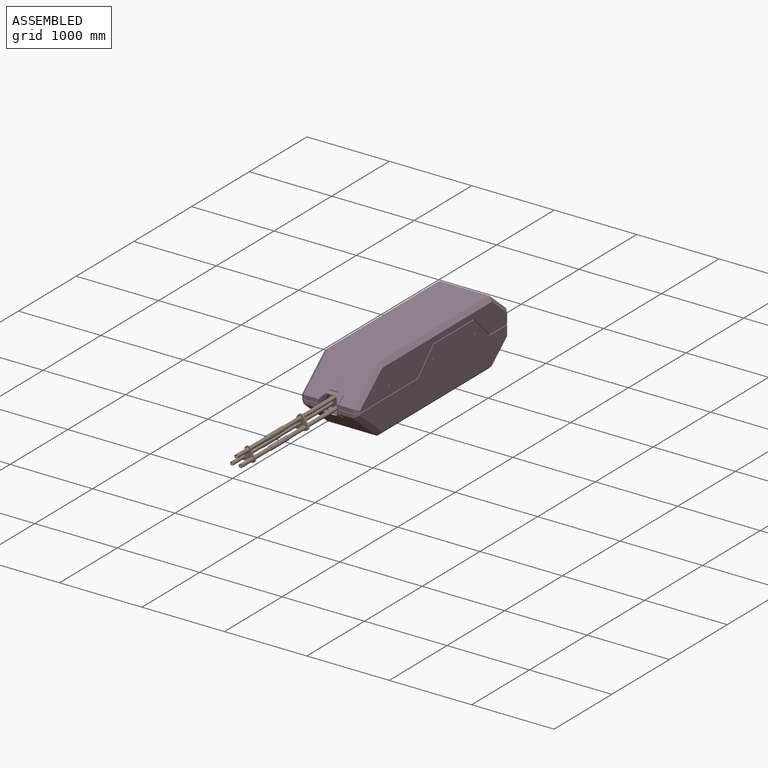
[diagram: assembled view]
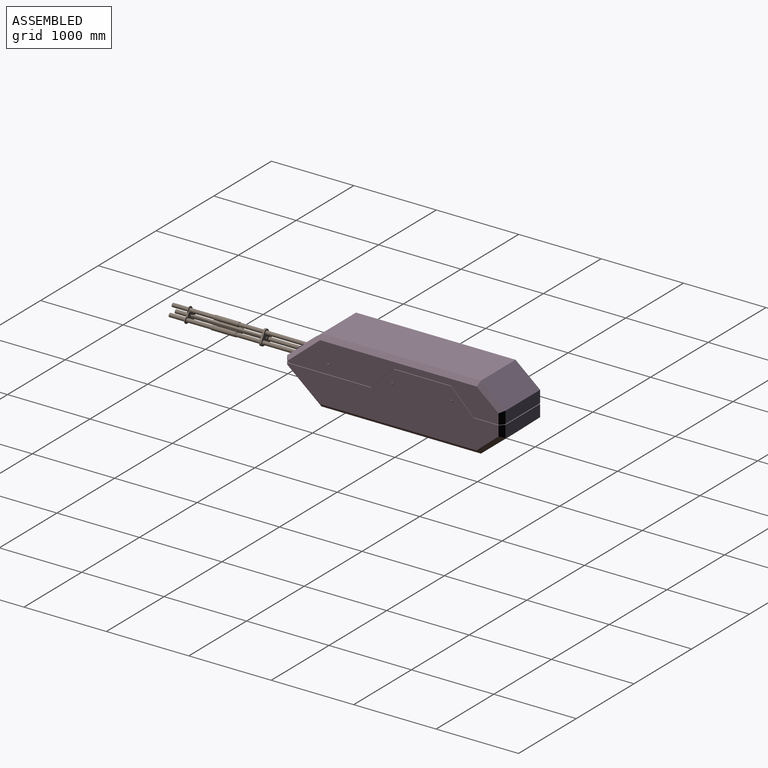
[diagram: assembled view, second angle]
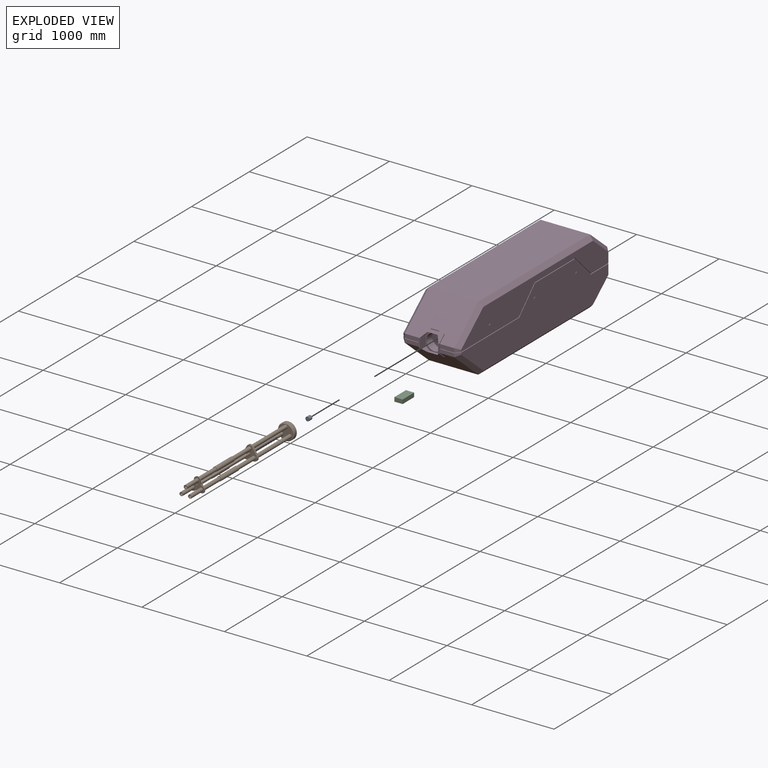
[diagram: exploded view]
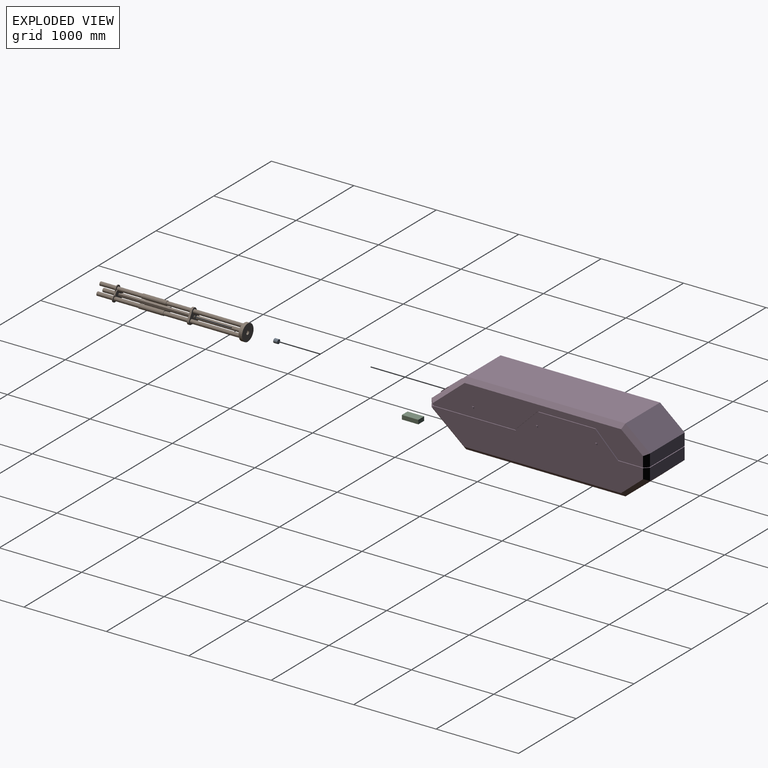
[diagram: exploded view, second angle]
ASSEMBLY  parts=4 mates=3
PART A: 3 faces, bbox 50x50x50 mm
  f0: cylinder r=25mm len=50mm, axis (0,1,0), area 7854mm2, adj f1,f2
  f1: plane 50x50mm, normal (0,-1,0), area 1963.5mm2, adj f0
  f2: plane 50x50mm, normal (0,1,0), area 1963.5mm2, adj f0
PART B: 78 faces, bbox 200x1785x200 mm
  f0: cylinder r=22.5mm len=300mm, axis (0,1,0), area 41789.5mm2, adj f25,f26,f43,f53,f55
  f1: plane 36.91x10mm, normal (1,0,0), area 369.1mm2, adj f2,f20,f22,f23,f58
  f2: plane 32.44x18.73mm, normal (0,-1,0), area 277.8mm2, adj f1,f25,f58
  f3: cylinder r=22.5mm len=300mm, axis (0,1,0), area 41789.5mm2, adj f24,f26,f37,f39,f43
  f4: cylinder r=22.5mm len=300mm, axis (0,1,0), area 41789.5mm2, adj f18,f23,f24,f25,f26
  f5: cylinder r=25mm len=50mm, axis (0,1,0), area 3927mm2, adj f7,f8
  f6: cylinder r=100mm len=200mm, axis (0,1,0), area 25132.7mm2, adj f7,f63
  f7: plane 200x200mm, normal (0,1,0), area 29452.4mm2, adj f5,f6
  f8: plane 50x50mm, normal (0,1,0), area 1963.5mm2, adj f5
  f9: plane 180x180mm, normal (0,-1,0), area 20675.6mm2, adj f10,f32,f49,f63
  f10: cylinder r=22.5mm len=600mm, axis (0,1,0), area 84823mm2, adj f9,f15
  f11: cylinder r=40mm len=69.28mm, axis (0,1,0), area 2094.4mm2, adj f12,f13,f14,f15
  f12: plane 90x51.96mm, normal (-0.87,0,0.5), area 2598.1mm2, adj f11,f14,f15,f33
  f13: plane 90x51.96mm, normal (0.87,0,0.5), area 2598.1mm2, adj f11,f14,f15,f50
  f14: plane 183.92x170mm, normal (0,-1,0), area 17002.6mm2, adj f11,f12,f13,f16,f33,f34,f35,f50
  f15: plane 183.92x170mm, normal (0,1,0), area 17002.6mm2, adj f10,f11,f12,f13,f32,f33,f34,f49
  f16: cylinder r=22.5mm len=300mm, axis (0,1,0), area 42411.5mm2, adj f14,f19
  f17: cylinder r=27.5mm len=300mm, axis (0,1,0), area 51836.3mm2, adj f18,f19
  f18: plane 55x55mm, normal (0,-1,0), area 785.4mm2, adj f4,f17
  f19: plane 55x55mm, normal (0,1,0), area 785.4mm2, adj f16,f17
  f20: cylinder r=40mm len=80mm, axis (0,1,0), area 1256.6mm2, adj f1,f21,f22,f23
  f21: plane 36.91x10mm, normal (-1,0,0), area 369.1mm2, adj f20,f22,f23,f27,f40
  f22: plane 183.92x170mm, normal (0,-1,0), area 13997.2mm2, adj f1,f20,f21,f28,f40,f41,f42,f45
  f23: plane 80x55.28mm, normal (0,1,0), area 2038.7mm2, adj f1,f4,f20,f21,f24,f25
  f24: cylinder r=60mm len=64.53mm, axis (0,-1,0), area 804mm2, adj f3,f4,f23,f26,f27,f39
  f25: cylinder r=60mm len=64.53mm, axis (0,-1,0), area 804mm2, adj f0,f2,f4,f23,f26,f55
  f26: plane 120x115.78mm, normal (0,1,0), area 8714.6mm2, adj f0,f3,f4,f24,f25,f43,f64,f65
  f27: plane 32.44x18.73mm, normal (0,-1,0), area 277.8mm2, adj f21,f24,f40
  f28: cylinder r=22.5mm len=200mm, axis (0,1,0), area 28274.3mm2, adj f22,f29
  f29: plane 45x45mm, normal (0,-1,0), area 883.6mm2, adj f28,f30
  f30: cylinder r=15mm len=200mm, axis (0,-1,0), area 18849.6mm2, adj f29,f31
  f31: plane 30x30mm, normal (0,-1,0), area 706.9mm2, adj f30
  f32: cylinder r=22.5mm len=600mm, axis (0,1,0), area 84823mm2, adj f9,f15
  f33: cylinder r=40mm len=60mm, axis (0,1,0), area 2094.4mm2, adj f12,f14,f15,f34
  f34: plane 103.92x25mm, normal (0,0,-1), area 2598.1mm2, adj f14,f15,f33,f50
  f35: cylinder r=22.5mm len=300mm, axis (0,1,0), area 42411.5mm2, adj f14,f38
  f36: cylinder r=27.5mm len=300mm, axis (0,1,0), area 51836.3mm2, adj f37,f38
  f37: plane 55x55mm, normal (0,-1,0), area 785.4mm2, adj f3,f36
  f38: plane 55x55mm, normal (0,1,0), area 785.4mm2, adj f35,f36
  f39: plane 82.28x73.23mm, normal (0,1,0), area 2038.7mm2, adj f3,f24,f40,f41,f42,f43
  f40: plane 31.96x18.45mm, normal (-0.5,0,0.87), area 369.1mm2, adj f21,f22,f27,f39,f41
  f41: cylinder r=40mm len=74.64mm, axis (0,1,0), area 1256.6mm2, adj f22,f39,f40,f42
  f42: plane 31.96x18.45mm, normal (0.5,0,-0.87), area 369.1mm2, adj f22,f39,f41,f44,f56
  f43: cylinder r=60mm len=74.52mm, axis (0,-1,0), area 804mm2, adj f0,f3,f26,f39,f44,f55
  f44: plane 37.46x13.81mm, normal (0,-1,0), area 277.8mm2, adj f42,f43,f56
  f45: cylinder r=22.5mm len=200mm, axis (0,1,0), area 28274.3mm2, adj f22,f46
  f46: plane 45x45mm, normal (0,-1,0), area 883.6mm2, adj f45,f47
  f47: cylinder r=15mm len=200mm, axis (0,-1,0), area 18849.6mm2, adj f46,f48
  f48: plane 30x30mm, normal (0,-1,0), area 706.9mm2, adj f47
  f49: cylinder r=22.5mm len=600mm, axis (0,1,0), area 84823mm2, adj f9,f15
  f50: cylinder r=40mm len=60mm, axis (0,1,0), area 2094.4mm2, adj f13,f14,f15,f34
  f51: cylinder r=22.5mm len=300mm, axis (0,1,0), area 42411.5mm2, adj f14,f54
  f52: cylinder r=27.5mm len=300mm, axis (0,1,0), area 51836.3mm2, adj f53,f54
  f53: plane 55x55mm, normal (0,-1,0), area 785.4mm2, adj f0,f52
  f54: plane 55x55mm, normal (0,1,0), area 785.4mm2, adj f51,f52
  f55: plane 82.28x73.23mm, normal (0,1,0), area 2038.7mm2, adj f0,f25,f43,f56,f57,f58
  f56: plane 31.96x18.45mm, normal (-0.5,0,-0.87), area 369.1mm2, adj f22,f42,f44,f55,f57
  f57: cylinder r=40mm len=74.64mm, axis (0,1,0), area 1256.6mm2, adj f22,f55,f56,f58
  f58: plane 31.96x18.45mm, normal (0.5,0,0.87), area 369.1mm2, adj f1,f2,f22,f55,f57
  f59: cylinder r=22.5mm len=200mm, axis (0,1,0), area 28274.3mm2, adj f22,f60
  f60: plane 45x45mm, normal (0,-1,0), area 883.6mm2, adj f59,f61
  f61: cylinder r=15mm len=200mm, axis (0,-1,0), area 18849.6mm2, adj f60,f62
  f62: plane 30x30mm, normal (0,-1,0), area 706.9mm2, adj f61
  f63: cone r=90mm half-angle=45deg, axis (0,1,0), area 8441.5mm2, adj f6,f9
  f64: plane 890x20mm, normal (1,0,0), area 17800mm2, adj f14,f26,f65,f67
  f65: plane 890x20mm, normal (0,0,-1), area 17800mm2, adj f14,f26,f64,f66
  f66: plane 890x20mm, normal (-1,0,0), area 17800mm2, adj f14,f26,f65,f67
  f67: plane 890x20mm, normal (0,0,1), area 17800mm2, adj f14,f26,f64,f66
  f68: plane 20x20mm, normal (0,-1,0), area 400mm2, adj f69,f70,f71,f72
  f69: plane 20x10mm, normal (1,0,0), area 200mm2, adj f22,f68,f70,f72
  f70: plane 20x10mm, normal (0,0,-1), area 200mm2, adj f22,f68,f69,f71
  f71: plane 20x10mm, normal (-1,0,0), area 200mm2, adj f22,f68,f70,f72
  f72: plane 20x10mm, normal (0,0,1), area 200mm2, adj f22,f68,f69,f71
  f73: plane 20x10mm, normal (0,0,1), area 200mm2, adj f15,f74,f76,f77
  f74: plane 20x10mm, normal (-1,0,0), area 200mm2, adj f15,f73,f75,f77
  f75: plane 20x10mm, normal (0,0,-1), area 200mm2, adj f15,f74,f76,f77
  f76: plane 20x10mm, normal (1,0,0), area 200mm2, adj f15,f73,f75,f77
  f77: plane 20x20mm, normal (0,1,0), area 400mm2, adj f73,f74,f75,f76
PART C: 6 faces, bbox 100x200x50 mm
  f0: plane 100x50mm, normal (0,-1,0), area 5000mm2, adj f1,f3,f4,f5
  f1: plane 200x50mm, normal (-1,0,0), area 10000mm2, adj f0,f2,f4,f5
  f2: plane 100x50mm, normal (0,1,0), area 5000mm2, adj f1,f3,f4,f5
  f3: plane 200x50mm, normal (1,0,0), area 10000mm2, adj f0,f2,f4,f5
  f4: plane 200x100mm, normal (0,0,-1), area 20000mm2, adj f0,f1,f2,f3
  f5: plane 200x100mm, normal (0,0,1), area 20000mm2, adj f0,f1,f2,f3
PART D: 125 faces, bbox 720x2660x800 mm
  f0: plane 1934.95x600mm, normal (0,0,-1), area 1140968.7mm2, adj f28,f31,f34,f82,f120,f121,f122,f123
  f1: plane 109.33x15mm, normal (0,-1,0), area 1639.9mm2, adj f4,f24,f39,f110
  f2: plane 2550x345mm, normal (1,0,0), area 519220.1mm2, adj f8,f12,f13,f14,f15,f16,f19,f42
  f3: plane 2550x620mm, normal (1,0,0), area 1052791.9mm2, adj f29,f32,f33,f34,f35,f36,f37,f43
  f4: plane 250x99.38mm, normal (1,0,0), area 3407.7mm2, adj f1,f5,f6,f7,f8,f23,f24,f27
  f5: plane 175x45mm, normal (0,-1,0), area 7875mm2, adj f4,f6,f8,f12
  f6: plane 600x417.11mm, normal (0,-0.64,0.77), area 295976.5mm2, adj f4,f5,f10,f13,f23,f25,f26,f65
  f7: plane 170.86x10mm, normal (0,-1,0), area 1708.6mm2, adj f4,f8,f20,f29
  f8: plane 1050x225mm, normal (0,0,-1), area 12374.3mm2, adj f2,f4,f5,f7,f12,f20,f21,f42
  f9: plane 600x145mm, normal (0,1,0), area 87000mm2, adj f11,f16,f19,f73
  f10: plane 1934.95x600mm, normal (0,0,1), area 1160968.7mm2, adj f6,f11,f14,f71
  f11: plane 600x297.94mm, normal (0,0.64,0.77), area 233358.6mm2, adj f9,f10,f15,f72
  f12: plane 50x50mm, normal (0.71,-0.71,0), area 2357.7mm2, adj f2,f5,f8,f13
  f13: plane 435.31x373.32mm, normal (0.71,-0.45,0.54), area 37034.5mm2, adj f2,f6,f12,f14
  f14: plane 1934.95x50mm, normal (0.71,0,0.71), area 135534.6mm2, adj f2,f10,f13,f15
  f15: plane 316.14x273.32mm, normal (0.71,0.45,0.54), area 26033.8mm2, adj f2,f11,f14,f16
  f16: plane 145x50mm, normal (0.71,0.71,0), area 9428.7mm2, adj f2,f9,f15,f19
  f17: plane 44.14x44.14mm, normal (0.71,0.71,0), area 624.3mm2, adj f18,f19,f21,f37
  f18: plane 591.72x10mm, normal (0,1,0), area 5917.2mm2, adj f17,f19,f37,f74
  f19: plane 700x350mm, normal (0,0,-1), area 13248.5mm2, adj f2,f9,f16,f17,f18,f21,f46,f63
  f20: plane 44.14x44.14mm, normal (0.71,-0.71,0), area 624.3mm2, adj f7,f8,f21,f29
  f21: plane 2541.72x285mm, normal (1,0,0), area 27695.3mm2, adj f8,f17,f19,f20,f29,f37,f42,f43
  f22: plane 109.33x15mm, normal (0,-1,0), area 1639.9mm2, adj f24,f39,f65,f108
  f23: plane 250x27.47mm, normal (0,0,1), area 5081.1mm2, adj f4,f6,f24,f25,f26,f65,f77
  f24: plane 250x83.82mm, normal (0,-0.64,0.77), area 12305.9mm2, adj f1,f4,f22,f23,f65,f107,f108,f110
  f25: plane 100x10mm, normal (0,-1,0), area 1000mm2, adj f6,f23,f26,f77
  f26: plane 11.92x10mm, normal (-1,0,0), area 59.6mm2, adj f6,f23,f25
  f27: plane 175x45mm, normal (0,-1,0), area 7875mm2, adj f4,f28,f29,f32
  f28: plane 600x417.11mm, normal (0,-0.64,-0.77), area 295976.5mm2, adj f0,f4,f27,f33,f38,f40,f41,f65
  f29: plane 1054.14x225mm, normal (0,0,1), area 12415.7mm2, adj f3,f4,f7,f20,f21,f27,f32,f43
  f30: plane 600x145mm, normal (0,1,0), area 87000mm2, adj f31,f36,f37,f84
  f31: plane 600x297.94mm, normal (0,0.64,-0.77), area 233358.6mm2, adj f0,f30,f35,f83
  f32: plane 50x50mm, normal (0.71,-0.71,0), area 2357.7mm2, adj f3,f27,f29,f33
  f33: plane 435.31x373.32mm, normal (0.71,-0.45,-0.54), area 37034.5mm2, adj f3,f28,f32,f34
  f34: plane 1934.95x50mm, normal (0.71,0,-0.71), area 135534.6mm2, adj f0,f3,f33,f35
  f35: plane 316.14x273.32mm, normal (0.71,0.45,-0.54), area 26033.8mm2, adj f3,f31,f34,f36
  f36: plane 145x50mm, normal (0.71,0.71,0), area 9428.7mm2, adj f3,f30,f35,f37
  f37: plane 700x354.14mm, normal (0,0,1), area 13331.4mm2, adj f3,f17,f18,f21,f30,f36,f45,f64
  f38: plane 250x27.47mm, normal (0,0,-1), area 5081.1mm2, adj f4,f28,f39,f40,f41,f65,f85
  f39: plane 250x83.82mm, normal (0,-0.64,-0.77), area 12305.9mm2, adj f1,f4,f22,f38,f65,f108,f109,f110
  f40: plane 100x10mm, normal (0,-1,0), area 1000mm2, adj f28,f38,f41,f85
  f41: plane 11.92x10mm, normal (-1,0,0), area 59.6mm2, adj f28,f38,f40
  f42: plane 275x275mm, normal (0,0.71,-0.71), area 3889.1mm2, adj f2,f8,f21,f47
  f43: plane 275x275mm, normal (0,-0.71,0.71), area 3889.1mm2, adj f3,f21,f29,f44
  f44: plane 691.72x10mm, normal (0,0,1), area 6917.2mm2, adj f3,f21,f43,f45
  f45: plane 275x275mm, normal (0,0.71,0.71), area 3889.1mm2, adj f3,f21,f37,f44
  f46: plane 275x275mm, normal (0,-0.71,-0.71), area 3889.1mm2, adj f2,f19,f21,f47
  f47: plane 700x10mm, normal (0,0,-1), area 7000mm2, adj f2,f21,f42,f46
  f48: plane 20x10mm, normal (0,0,1), area 200mm2, adj f3,f49,f51,f52
  f49: plane 20x10mm, normal (0,-1,0), area 200mm2, adj f3,f48,f50,f52
  f50: plane 20x10mm, normal (0,0,-1), area 200mm2, adj f3,f49,f51,f52
  f51: plane 20x10mm, normal (0,1,0), area 200mm2, adj f3,f48,f50,f52
  f52: plane 20x20mm, normal (1,0,0), area 400mm2, adj f48,f49,f50,f51
  f53: plane 20x10mm, normal (0,-1,0), area 200mm2, adj f3,f54,f56,f57
  f54: plane 20x10mm, normal (0,0,-1), area 200mm2, adj f3,f53,f55,f57
  f55: plane 20x10mm, normal (0,1,0), area 200mm2, adj f3,f54,f56,f57
  f56: plane 20x10mm, normal (0,0,1), area 200mm2, adj f3,f53,f55,f57
  f57: plane 20x20mm, normal (1,0,0), area 400mm2, adj f53,f54,f55,f56
  f58: plane 20x10mm, normal (0,0,-1), area 200mm2, adj f2,f59,f61,f62
  f59: plane 20x10mm, normal (0,1,0), area 200mm2, adj f2,f58,f60,f62
  f60: plane 20x10mm, normal (0,0,1), area 200mm2, adj f2,f59,f61,f62
  f61: plane 20x10mm, normal (0,-1,0), area 200mm2, adj f2,f58,f60,f62
  f62: plane 20x20mm, normal (1,0,0), area 400mm2, adj f58,f59,f60,f61
  f63: plane 2550x345mm, normal (-1,0,0), area 519220.1mm2, adj f19,f68,f69,f70,f71,f72,f73,f86
  f64: plane 2550x620mm, normal (-1,0,0), area 1052791.9mm2, adj f37,f79,f80,f81,f82,f83,f84,f87
  f65: plane 250x99.38mm, normal (-1,0,0), area 3407.7mm2, adj f6,f22,f23,f24,f28,f38,f39,f66
  f66: plane 175x45mm, normal (0,-1,0), area 7875mm2, adj f6,f65,f68,f69
  f67: plane 170.86x10mm, normal (0,-1,0), area 1708.6mm2, adj f65,f68,f75,f79
  f68: plane 1050x225mm, normal (0,0,-1), area 12374.3mm2, adj f63,f65,f66,f67,f69,f75,f76,f86
  f69: plane 50x50mm, normal (-0.71,-0.71,0), area 2357.7mm2, adj f63,f66,f68,f70
  f70: plane 435.31x373.32mm, normal (-0.71,-0.45,0.54), area 37034.5mm2, adj f6,f63,f69,f71
  f71: plane 1934.95x50mm, normal (-0.71,0,0.71), area 135534.6mm2, adj f10,f63,f70,f72
  f72: plane 316.14x273.32mm, normal (-0.71,0.45,0.54), area 26033.8mm2, adj f11,f63,f71,f73
  f73: plane 145x50mm, normal (-0.71,0.71,0), area 9428.7mm2, adj f9,f19,f63,f72
  f74: plane 44.14x44.14mm, normal (-0.71,0.71,0), area 624.3mm2, adj f18,f19,f37,f76
  f75: plane 44.14x44.14mm, normal (-0.71,-0.71,0), area 624.3mm2, adj f67,f68,f76,f79
  f76: plane 2541.72x285mm, normal (-1,0,0), area 27695.3mm2, adj f19,f37,f68,f74,f75,f79,f86,f87
  f77: plane 11.92x10mm, normal (1,0,0), area 59.6mm2, adj f6,f23,f25
  f78: plane 175x45mm, normal (0,-1,0), area 7875mm2, adj f28,f65,f79,f80
  f79: plane 1054.14x225mm, normal (0,0,1), area 12415.7mm2, adj f64,f65,f67,f75,f76,f78,f80,f87
  f80: plane 50x50mm, normal (-0.71,-0.71,0), area 2357.7mm2, adj f64,f78,f79,f81
  f81: plane 435.31x373.32mm, normal (-0.71,-0.45,-0.54), area 37034.5mm2, adj f28,f64,f80,f82
  f82: plane 1934.95x50mm, normal (-0.71,0,-0.71), area 135534.6mm2, adj f0,f64,f81,f83
  f83: plane 316.14x273.32mm, normal (-0.71,0.45,-0.54), area 26033.8mm2, adj f31,f64,f82,f84
  f84: plane 145x50mm, normal (-0.71,0.71,0), area 9428.7mm2, adj f30,f37,f64,f83
  f85: plane 11.92x10mm, normal (1,0,0), area 59.6mm2, adj f28,f38,f40
  f86: plane 275x275mm, normal (0,0.71,-0.71), area 3889.1mm2, adj f63,f68,f76,f91
  f87: plane 275x275mm, normal (0,-0.71,0.71), area 3889.1mm2, adj f64,f76,f79,f88
  f88: plane 691.72x10mm, normal (0,0,1), area 6917.2mm2, adj f64,f76,f87,f89
  f89: plane 275x275mm, normal (0,0.71,0.71), area 3889.1mm2, adj f37,f64,f76,f88
  f90: plane 275x275mm, normal (0,-0.71,-0.71), area 3889.1mm2, adj f19,f63,f76,f91
  f91: plane 700x10mm, normal (0,0,-1), area 7000mm2, adj f63,f76,f86,f90
  f92: plane 20x10mm, normal (0,0,1), area 200mm2, adj f64,f93,f95,f96
  f93: plane 20x10mm, normal (0,-1,0), area 200mm2, adj f64,f92,f94,f96
  f94: plane 20x10mm, normal (0,0,-1), area 200mm2, adj f64,f93,f95,f96
  f95: plane 20x10mm, normal (0,1,0), area 200mm2, adj f64,f92,f94,f96
  f96: plane 20x20mm, normal (-1,0,0), area 400mm2, adj f92,f93,f94,f95
  f97: plane 20x10mm, normal (0,-1,0), area 200mm2, adj f64,f98,f100,f101
  f98: plane 20x10mm, normal (0,0,-1), area 200mm2, adj f64,f97,f99,f101
  f99: plane 20x10mm, normal (0,1,0), area 200mm2, adj f64,f98,f100,f101
  f100: plane 20x10mm, normal (0,0,1), area 200mm2, adj f64,f97,f99,f101
  f101: plane 20x20mm, normal (-1,0,0), area 400mm2, adj f97,f98,f99,f100
  f102: plane 20x10mm, normal (0,0,-1), area 200mm2, adj f63,f103,f105,f106
  f103: plane 20x10mm, normal (0,1,0), area 200mm2, adj f63,f102,f104,f106
  f104: plane 20x10mm, normal (0,0,1), area 200mm2, adj f63,f103,f105,f106
  f105: plane 20x10mm, normal (0,-1,0), area 200mm2, adj f63,f102,f104,f106
  f106: plane 20x20mm, normal (-1,0,0), area 400mm2, adj f102,f103,f104,f105
  f107: plane 120x34.05mm, normal (0,0,-1), area 4086.2mm2, adj f24,f111,f114,f115
  f108: plane 120x100mm, normal (1,0,0), area 11966.1mm2, adj f22,f24,f39,f111,f112,f114
  f109: plane 120x34.05mm, normal (0,0,1), area 4086.2mm2, adj f39,f111,f112,f113
  f110: plane 120x100mm, normal (-1,0,0), area 11966.1mm2, adj f1,f24,f39,f111,f113,f115
  f111: plane 220x220mm, normal (0,-1,0), area 11984.1mm2, adj f107,f108,f109,f110,f112,f113,f114,f115
  f112: plane 93.64x50mm, normal (0.71,0,0.71), area 4514.6mm2, adj f39,f108,f109,f111
  f113: plane 93.64x50mm, normal (-0.71,0,0.71), area 4514.6mm2, adj f39,f109,f110,f111
  f114: plane 93.64x50mm, normal (0.71,0,-0.71), area 4514.6mm2, adj f24,f107,f108,f111
  f115: plane 93.64x50mm, normal (-0.71,0,-0.71), area 4514.6mm2, adj f24,f107,f110,f111
  f116: cylinder r=100mm len=200mm, axis (0,-1,0), area 62831.9mm2, adj f111,f117
  f117: plane 200x200mm, normal (0,-1,0), area 29452.4mm2, adj f116,f118
  f118: cylinder r=25mm len=50mm, axis (0,-1,0), area 3927mm2, adj f117,f119
  f119: plane 50x50mm, normal (0,-1,0), area 1963.5mm2, adj f118
  f120: plane 100x25mm, normal (0,1,0), area 2500mm2, adj f0,f121,f123,f124
  f121: plane 200x25mm, normal (1,0,0), area 5000mm2, adj f0,f120,f122,f124
  f122: plane 100x25mm, normal (0,-1,0), area 2500mm2, adj f0,f121,f123,f124
  f123: plane 200x25mm, normal (-1,0,0), area 5000mm2, adj f0,f120,f122,f124
  f124: plane 200x100mm, normal (0,0,-1), area 20000mm2, adj f120,f121,f122,f123
PLACE A t=(-316.37,-1320,291.89)mm
PLACE B t=(-316.37,-1320,291.89)mm
PLACE C t=(-316.37,-1320,291.89)mm
PLACE D t=(-316.37,-1320,291.89)mm
MATE fastened C.f5 <-> D.f124  axis (0,0,1) through (-316.37,-2.89,-83.11)mm
MATE revolute A.f0 <-> D.f118  axis (0,1,0) through (-316.37,-1105,291.89)mm
MATE fastened B.f5 <-> A.f0  axis (0,1,0) through (-316.37,-1155,291.89)mm
